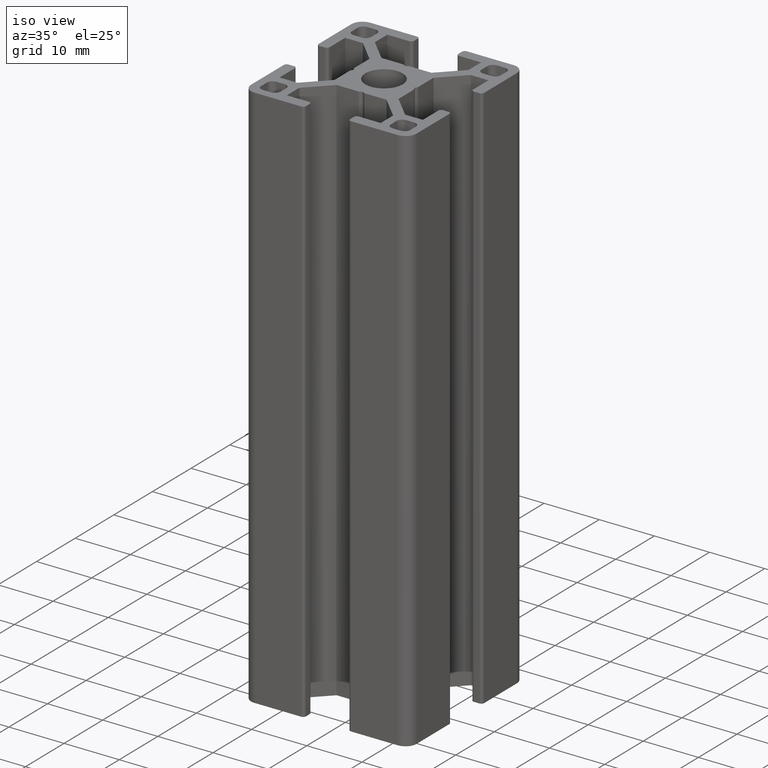
[diagram: clean part render]
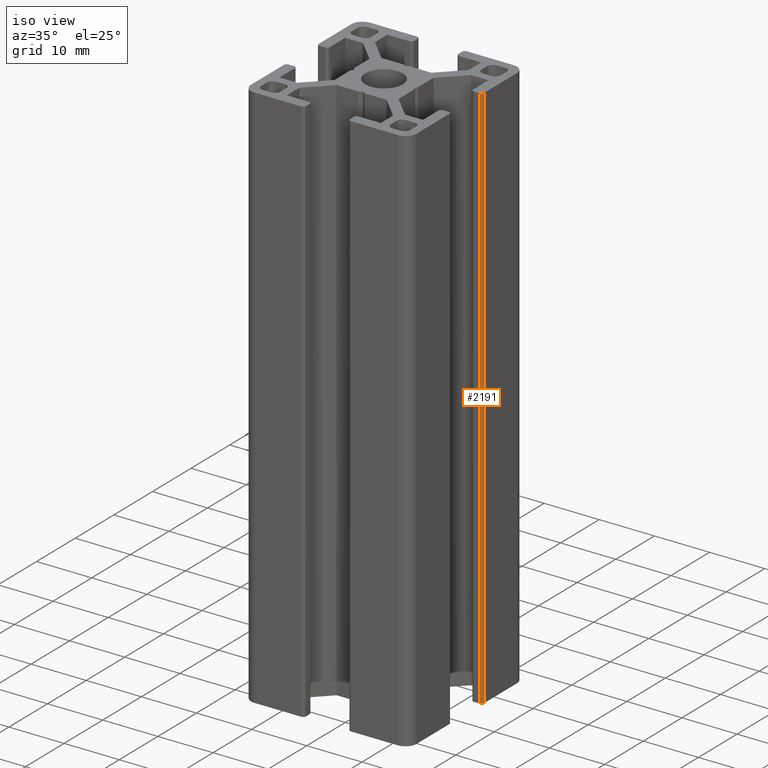
[diagram: same view with one face highlighted and labeled with its STEP entity id]
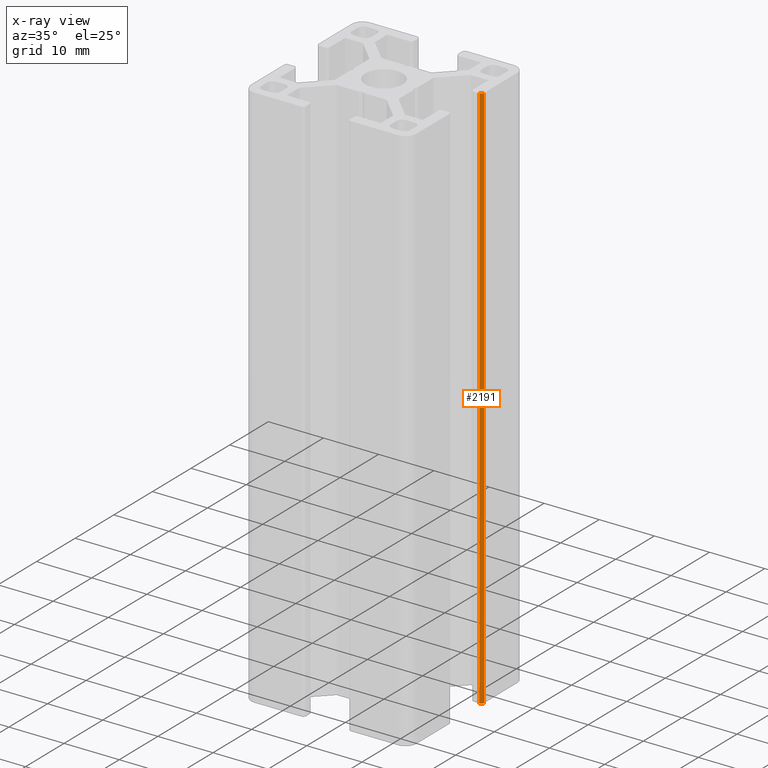
[diagram: x-ray of the same camera — body ghosted, the highlighted face saturated]
A machine part, iso view. The second image highlights one B-rep face of the part: STEP entity #2191.
The next image is the same camera in x-ray: the body ghosted, the highlighted face saturated — about 0% of this face is hidden behind the body in this view.
In plain terms, the highlighted cylindrical surface (edge-blend (fillet) strip) has radius 0.5 mm, axis along (0, 0, 1).
Its self-contained STEP definition (entity closure, byte-faithful):
#62=CIRCLE('',#2341,0.499999891025617);
#63=CIRCLE('',#2342,0.499999891025617);
#118=CYLINDRICAL_SURFACE('',#2340,0.499999891025617);
#184=FACE_OUTER_BOUND('',#296,.T.);
#296=EDGE_LOOP('',(#1604,#1605,#1606,#1607));
#475=LINE('',#3353,#727);
#476=LINE('',#3359,#728);
#727=VECTOR('',#2715,100.);
#728=VECTOR('',#2722,100.);
#970=VERTEX_POINT('',#3349);
#971=VERTEX_POINT('',#3351);
#972=VERTEX_POINT('',#3355);
#973=VERTEX_POINT('',#3357);
#1233=EDGE_CURVE('',#971,#970,#475,.T.);
#1234=EDGE_CURVE('',#970,#972,#62,.T.);
#1235=EDGE_CURVE('',#973,#971,#63,.T.);
#1236=EDGE_CURVE('',#972,#973,#476,.T.);
#1604=ORIENTED_EDGE('',*,*,#1234,.F.);
#1605=ORIENTED_EDGE('',*,*,#1233,.F.);
#1606=ORIENTED_EDGE('',*,*,#1235,.F.);
#1607=ORIENTED_EDGE('',*,*,#1236,.F.);
#2191=ADVANCED_FACE('',(#184),#118,.T.);
#2340=AXIS2_PLACEMENT_3D('',#3354,#2716,#2717);
#2341=AXIS2_PLACEMENT_3D('',#3356,#2718,#2719);
#2342=AXIS2_PLACEMENT_3D('',#3358,#2720,#2721);
#2715=DIRECTION('',(0.,0.,1.));
#2716=DIRECTION('center_axis',(0.,0.,1.));
#2717=DIRECTION('ref_axis',(0.,1.,0.));
#2718=DIRECTION('center_axis',(0.,0.,1.));
#2719=DIRECTION('ref_axis',(0.,1.,0.));
#2720=DIRECTION('center_axis',(0.,0.,-1.));
#2721=DIRECTION('ref_axis',(0.,1.,0.));
#2722=DIRECTION('',(0.,0.,-1.));
#3349=CARTESIAN_POINT('',(14.5000001089744,3.99999339063991,100.));
#3351=CARTESIAN_POINT('',(14.5000001089744,3.99999339063991,0.));
#3353=CARTESIAN_POINT('',(14.5000001089744,3.99999339063991,0.));
#3354=CARTESIAN_POINT('Origin',(14.5000001089744,4.4999932816655,0.));
#3355=CARTESIAN_POINT('',(15.,4.4999932816655,100.));
#3356=CARTESIAN_POINT('Origin',(14.5000001089744,4.4999932816655,100.));
#3357=CARTESIAN_POINT('',(15.,4.4999932816655,0.));
#3358=CARTESIAN_POINT('Origin',(14.5000001089744,4.4999932816655,0.));
#3359=CARTESIAN_POINT('',(14.9999999994793,4.49999328168037,0.));